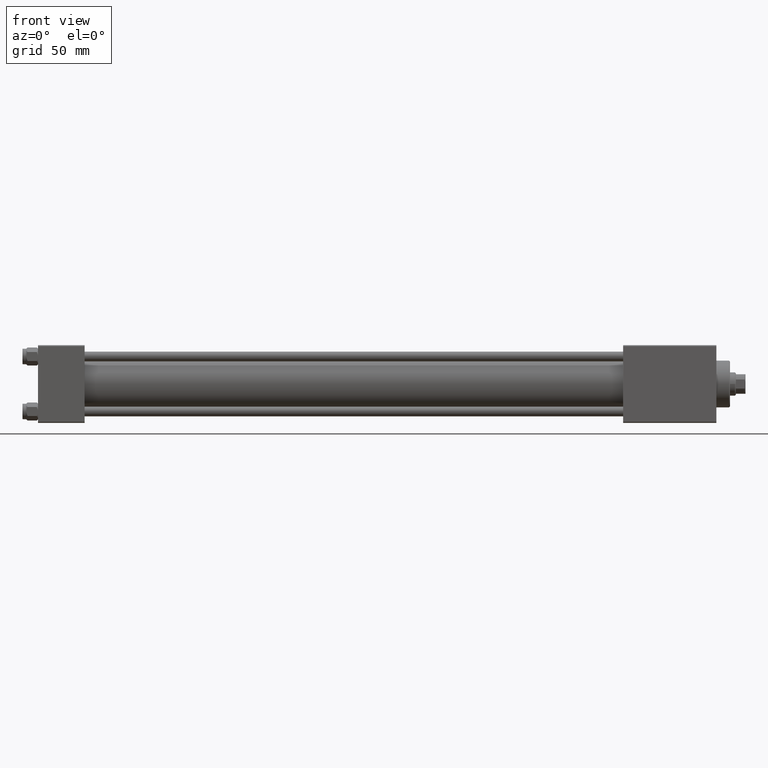
[diagram: clean part render]
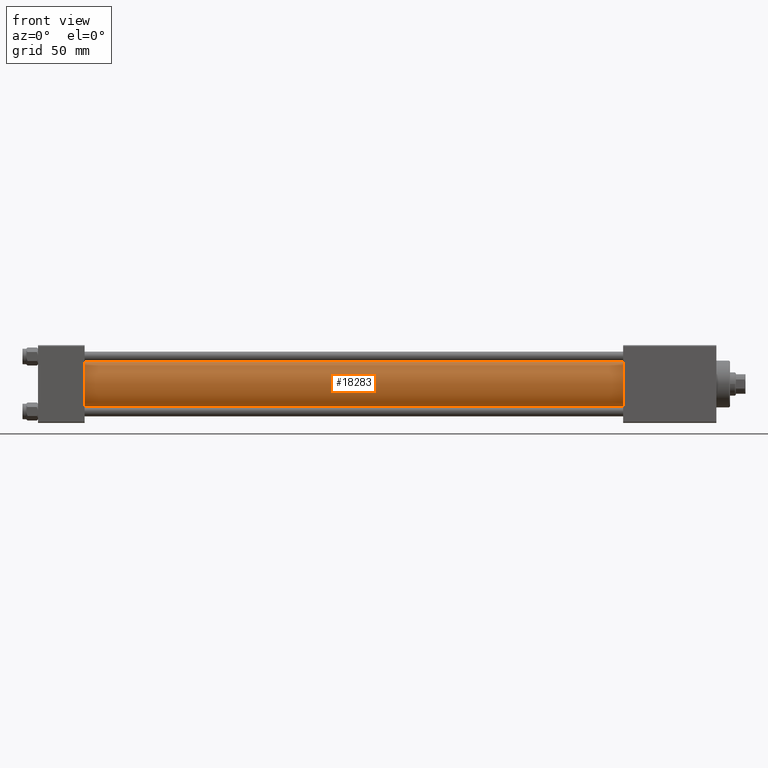
[diagram: same view with one face highlighted and labeled with its STEP entity id]
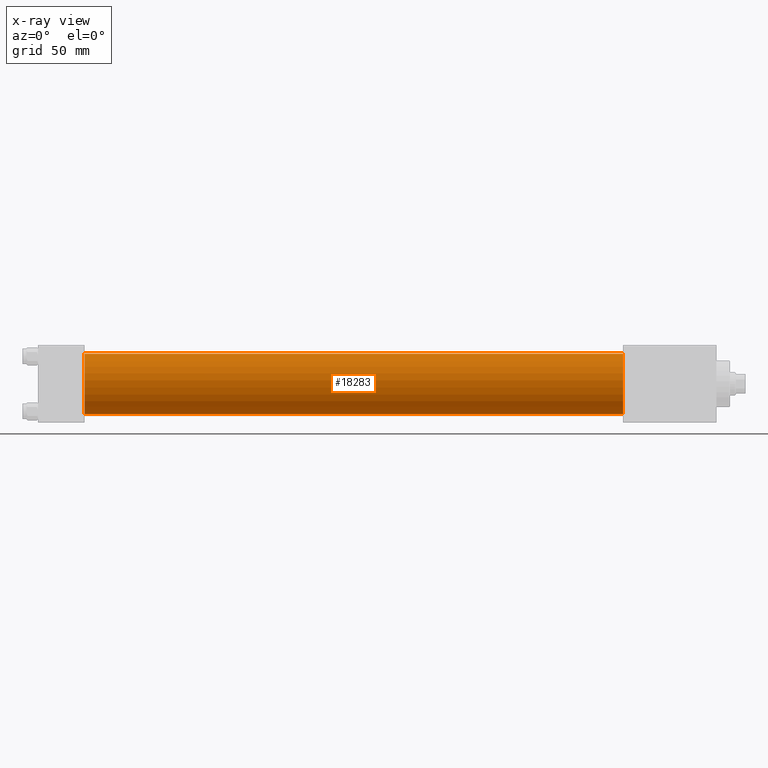
[diagram: x-ray of the same camera — body ghosted, the highlighted face saturated]
A machine part, front view. The second image highlights one B-rep face of the part: STEP entity #18283.
The next image is the same camera in x-ray: the body ghosted, the highlighted face saturated — about 0% of this face is hidden behind the body in this view.
In plain terms, the highlighted cylindrical surface (edge-blend (fillet) strip) has radius 15.5 mm, axis along (-1, -0, -0).
Its self-contained STEP definition (entity closure, byte-faithful):
#189 = VERTEX_POINT ( 'NONE', #21016 ) ;
#2231 = CIRCLE ( 'NONE', #48373, 15.50000000000000000 ) ;
#3980 = CARTESIAN_POINT ( 'NONE',  ( 301.0000000000000568, -2.602085213965210642E-15, 0.000000000000000000 ) ) ;
#6614 = FACE_OUTER_BOUND ( 'NONE', #42801, .T. ) ;
#7063 = AXIS2_PLACEMENT_3D ( 'NONE', #34987, #19799, #35240 ) ;
#10977 = VERTEX_POINT ( 'NONE', #30512 ) ;
#11396 = DIRECTION ( 'NONE',  ( -1.000000000000000000, -0.000000000000000000, -0.000000000000000000 ) ) ;
#14688 = ORIENTED_EDGE ( 'NONE', *, *, #38883, .T. ) ;
#16533 = CARTESIAN_POINT ( 'NONE',  ( 301.0000000000000568, -2.602085213965210642E-15, 15.50000000000000000 ) ) ;
#18283 = ADVANCED_FACE ( 'NONE', ( #6614 ), #23260, .T. ) ;
#19020 = VERTEX_POINT ( 'NONE', #25629 ) ;
#19799 = DIRECTION ( 'NONE',  ( 1.000000000000000000, 0.000000000000000000, 0.000000000000000000 ) ) ;
#20096 = DIRECTION ( 'NONE',  ( -1.000000000000000000, -0.000000000000000000, -0.000000000000000000 ) ) ;
#21016 = CARTESIAN_POINT ( 'NONE',  ( 24.00000000000002132, -7.038826752868131828E-16, -15.50000000000000000 ) ) ;
#21779 = EDGE_CURVE ( 'NONE', #23006, #189, #23266, .T. ) ;
#23006 = VERTEX_POINT ( 'NONE', #42933 ) ;
#23260 = CYLINDRICAL_SURFACE ( 'NONE', #28818, 15.50000000000000000 ) ;
#23266 = CIRCLE ( 'NONE', #7063, 15.50000000000000000 ) ;
#25629 = CARTESIAN_POINT ( 'NONE',  ( 301.0000000000000568, -2.602085213965210642E-15, 15.50000000000000000 ) ) ;
#26670 = CARTESIAN_POINT ( 'NONE',  ( 301.0000000000000568, -2.602085213965210642E-15, 0.000000000000000000 ) ) ;
#27258 = VECTOR ( 'NONE', #20096, 1000.000000000000000 ) ;
#27936 = LINE ( 'NONE', #16533, #27258 ) ;
#28818 = AXIS2_PLACEMENT_3D ( 'NONE', #3980, #46068, #33729 ) ;
#29969 = DIRECTION ( 'NONE',  ( 1.000000000000000000, 0.000000000000000000, 0.000000000000000000 ) ) ;
#30415 = ORIENTED_EDGE ( 'NONE', *, *, #40700, .F. ) ;
#30512 = CARTESIAN_POINT ( 'NONE',  ( 301.0000000000000568, -7.038826752868131828E-16, -15.50000000000000000 ) ) ;
#30841 = ORIENTED_EDGE ( 'NONE', *, *, #21779, .T. ) ;
#32120 = VECTOR ( 'NONE', #11396, 1000.000000000000000 ) ;
#33729 = DIRECTION ( 'NONE',  ( 0.000000000000000000, 0.000000000000000000, 1.000000000000000000 ) ) ;
#34210 = LINE ( 'NONE', #46105, #32120 ) ;
#34848 = EDGE_CURVE ( 'NONE', #10977, #189, #34210, .T. ) ;
#34987 = CARTESIAN_POINT ( 'NONE',  ( 24.00000000000002132, -2.602085213965210642E-15, 0.000000000000000000 ) ) ;
#35240 = DIRECTION ( 'NONE',  ( 0.000000000000000000, 0.000000000000000000, 1.000000000000000000 ) ) ;
#38883 = EDGE_CURVE ( 'NONE', #19020, #23006, #27936, .T. ) ;
#39067 = ORIENTED_EDGE ( 'NONE', *, *, #34848, .F. ) ;
#40700 = EDGE_CURVE ( 'NONE', #19020, #10977, #2231, .T. ) ;
#42801 = EDGE_LOOP ( 'NONE', ( #39067, #30415, #14688, #30841 ) ) ;
#42933 = CARTESIAN_POINT ( 'NONE',  ( 24.00000000000002132, -2.602085213965210642E-15, 15.50000000000000000 ) ) ;
#46068 = DIRECTION ( 'NONE',  ( -1.000000000000000000, -0.000000000000000000, -0.000000000000000000 ) ) ;
#46105 = CARTESIAN_POINT ( 'NONE',  ( 301.0000000000000568, -7.038826752868131828E-16, -15.50000000000000000 ) ) ;
#48373 = AXIS2_PLACEMENT_3D ( 'NONE', #26670, #29969, #49230 ) ;
#49230 = DIRECTION ( 'NONE',  ( 0.000000000000000000, 0.000000000000000000, -1.000000000000000000 ) ) ;